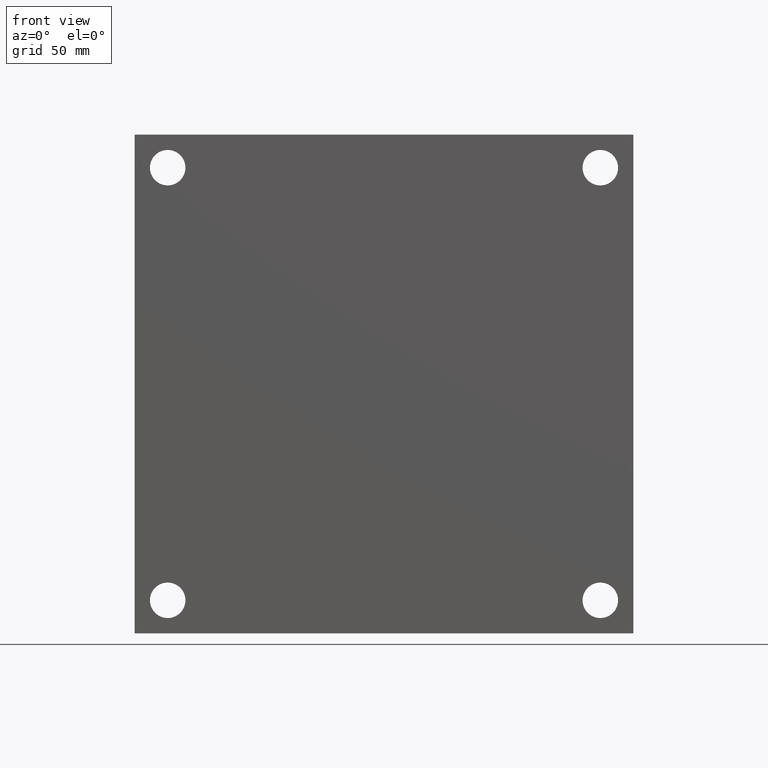
[diagram: clean part render]
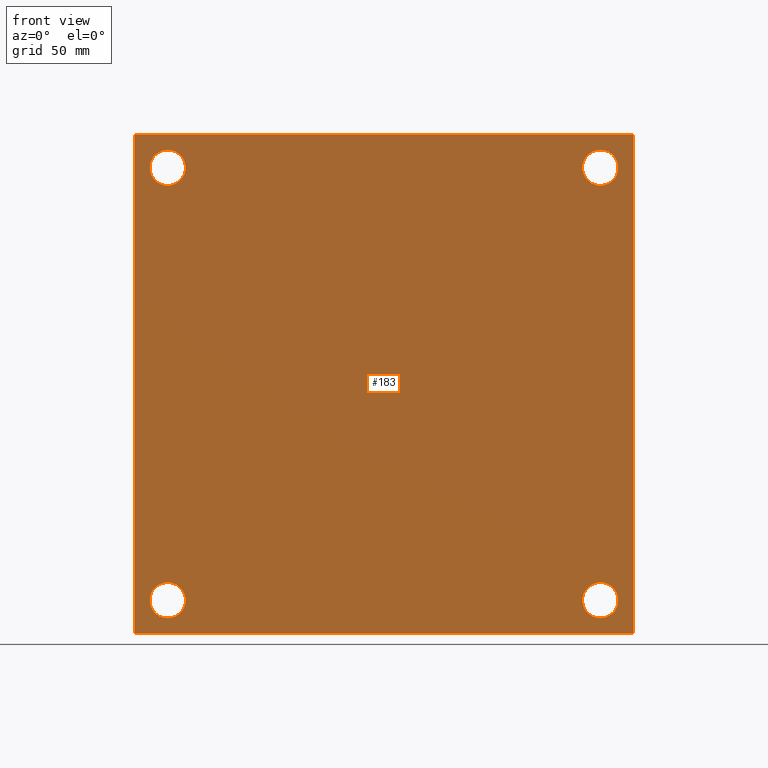
[diagram: same view with one face highlighted and labeled with its STEP entity id]
A machine part, front view. The second image highlights one B-rep face of the part: STEP entity #183.
In plain terms, the highlighted planar face has unit normal (0, 1, 0).
Its self-contained STEP definition (entity closure, byte-faithful):
#3 = EDGE_CURVE ( 'NONE', #1423, #295, #827, .T. ) ;
#25 = ORIENTED_EDGE ( 'NONE', *, *, #381, .F. ) ;
#42 = DIRECTION ( 'NONE',  ( 0.0000000000000000000, 1.000000000000000000, -0.0000000000000000000 ) ) ;
#47 = CARTESIAN_POINT ( 'NONE',  ( 5.312500000000000000, 0.0000000000000000000, 4.875000000000000900 ) ) ;
#50 = ORIENTED_EDGE ( 'NONE', *, *, #1134, .T. ) ;
#56 = DIRECTION ( 'NONE',  ( -1.000000000000000000, -0.0000000000000000000, -0.0000000000000000000 ) ) ;
#60 = LINE ( 'NONE', #564, #987 ) ;
#70 = DIRECTION ( 'NONE',  ( 0.0000000000000000000, 0.0000000000000000000, 1.000000000000000000 ) ) ;
#72 = EDGE_CURVE ( 'NONE', #1337, #509, #60, .T. ) ;
#75 = PLANE ( 'NONE',  #1527 ) ;
#76 = LINE ( 'NONE', #1015, #155 ) ;
#88 = DIRECTION ( 'NONE',  ( 0.0000000000000000000, 1.000000000000000000, -0.0000000000000000000 ) ) ;
#116 = EDGE_CURVE ( 'NONE', #420, #1254, #384, .T. ) ;
#144 = DIRECTION ( 'NONE',  ( 0.0000000000000000000, 1.000000000000000000, 0.0000000000000000000 ) ) ;
#145 = CIRCLE ( 'NONE', #574, 0.4374999999999998900 ) ;
#151 = EDGE_CURVE ( 'NONE', #1353, #1538, #1131, .T. ) ;
#155 = VECTOR ( 'NONE', #1146, 39.37007874015748100 ) ;
#175 = CARTESIAN_POINT ( 'NONE',  ( 6.125000000000000000, 0.0000000000000000000, -6.125000000000000000 ) ) ;
#183 = ADVANCED_FACE ( 'NONE', ( #302, #1550, #595, #1400, #453 ), #75, .F. ) ;
#192 = DIRECTION ( 'NONE',  ( 0.0000000000000000000, 1.000000000000000000, -0.0000000000000000000 ) ) ;
#205 = EDGE_LOOP ( 'NONE', ( #1393, #1133, #25, #218 ) ) ;
#208 = DIRECTION ( 'NONE',  ( 0.0000000000000000000, -0.0000000000000000000, 1.000000000000000000 ) ) ;
#218 = ORIENTED_EDGE ( 'NONE', *, *, #648, .F. ) ;
#230 = CARTESIAN_POINT ( 'NONE',  ( 5.312500000000000000, 0.0000000000000000000, -5.750000000000000900 ) ) ;
#239 = ORIENTED_EDGE ( 'NONE', *, *, #752, .T. ) ;
#264 = AXIS2_PLACEMENT_3D ( 'NONE', #455, #447, #1290 ) ;
#266 = CARTESIAN_POINT ( 'NONE',  ( -6.125000000000000000, 0.0000000000000000000, -6.125000000000000000 ) ) ;
#271 = VERTEX_POINT ( 'NONE', #230 ) ;
#280 = DIRECTION ( 'NONE',  ( 0.0000000000000000000, 1.000000000000000000, -0.0000000000000000000 ) ) ;
#295 = VERTEX_POINT ( 'NONE', #1465 ) ;
#302 = FACE_OUTER_BOUND ( 'NONE', #205, .T. ) ;
#331 = CARTESIAN_POINT ( 'NONE',  ( -5.312500000000000000, 0.0000000000000000000, -5.312500000000000900 ) ) ;
#371 = EDGE_CURVE ( 'NONE', #509, #1330, #541, .T. ) ;
#381 = EDGE_CURVE ( 'NONE', #658, #1337, #502, .T. ) ;
#384 = CIRCLE ( 'NONE', #1480, 0.4374999999999998900 ) ;
#420 = VERTEX_POINT ( 'NONE', #893 ) ;
#430 = CARTESIAN_POINT ( 'NONE',  ( -5.312500000000000000, 0.0000000000000000000, 5.312500000000000900 ) ) ;
#438 = CARTESIAN_POINT ( 'NONE',  ( -6.125000000000000000, 0.0000000000000000000, -6.125000000000000000 ) ) ;
#442 = DIRECTION ( 'NONE',  ( 0.0000000000000000000, 1.000000000000000000, 0.0000000000000000000 ) ) ;
#447 = DIRECTION ( 'NONE',  ( 0.0000000000000000000, 1.000000000000000000, 0.0000000000000000000 ) ) ;
#453 = FACE_BOUND ( 'NONE', #967, .T. ) ;
#455 = CARTESIAN_POINT ( 'NONE',  ( 5.312500000000000000, 0.0000000000000000000, 5.312500000000000900 ) ) ;
#466 = EDGE_LOOP ( 'NONE', ( #957, #1414 ) ) ;
#502 = LINE ( 'NONE', #816, #1026 ) ;
#507 = CARTESIAN_POINT ( 'NONE',  ( -5.312500000000000000, 0.0000000000000000000, -4.875000000000000900 ) ) ;
#509 = VERTEX_POINT ( 'NONE', #266 ) ;
#527 = ORIENTED_EDGE ( 'NONE', *, *, #3, .T. ) ;
#531 = DIRECTION ( 'NONE',  ( 0.0000000000000000000, 0.0000000000000000000, -1.000000000000000000 ) ) ;
#541 = LINE ( 'NONE', #438, #1361 ) ;
#564 = CARTESIAN_POINT ( 'NONE',  ( -6.125000000000000000, 0.0000000000000000000, -6.125000000000000000 ) ) ;
#566 = ORIENTED_EDGE ( 'NONE', *, *, #613, .T. ) ;
#573 = DIRECTION ( 'NONE',  ( 0.0000000000000000000, 0.0000000000000000000, 1.000000000000000000 ) ) ;
#574 = AXIS2_PLACEMENT_3D ( 'NONE', #986, #144, #622 ) ;
#595 = FACE_BOUND ( 'NONE', #1308, .T. ) ;
#613 = EDGE_CURVE ( 'NONE', #1057, #271, #1293, .T. ) ;
#622 = DIRECTION ( 'NONE',  ( 0.0000000000000000000, 0.0000000000000000000, 1.000000000000000000 ) ) ;
#648 = EDGE_CURVE ( 'NONE', #1330, #658, #76, .T. ) ;
#658 = VERTEX_POINT ( 'NONE', #666 ) ;
#666 = CARTESIAN_POINT ( 'NONE',  ( 6.125000000000000900, 0.0000000000000000000, 6.125000000000000000 ) ) ;
#669 = DIRECTION ( 'NONE',  ( 0.0000000000000000000, 0.0000000000000000000, -1.000000000000000000 ) ) ;
#706 = CARTESIAN_POINT ( 'NONE',  ( 5.312500000000000000, 0.0000000000000000000, 5.750000000000000900 ) ) ;
#752 = EDGE_CURVE ( 'NONE', #295, #1423, #1406, .T. ) ;
#791 = CARTESIAN_POINT ( 'NONE',  ( 5.312500000000000000, 0.0000000000000000000, -5.312500000000000900 ) ) ;
#793 = CIRCLE ( 'NONE', #1455, 0.4374999999999998900 ) ;
#816 = CARTESIAN_POINT ( 'NONE',  ( 6.125000000000000000, 0.0000000000000000000, -6.125000000000000000 ) ) ;
#827 = CIRCLE ( 'NONE', #1500, 0.4374999999999998900 ) ;
#832 = CARTESIAN_POINT ( 'NONE',  ( -6.125000000000000000, 0.0000000000000000000, 6.125000000000000000 ) ) ;
#850 = CIRCLE ( 'NONE', #1053, 0.4374999999999998900 ) ;
#893 = CARTESIAN_POINT ( 'NONE',  ( -5.312500000000000000, 0.0000000000000000000, -5.750000000000000900 ) ) ;
#923 = CARTESIAN_POINT ( 'NONE',  ( -6.125000000000000000, 0.0000000000000000000, 6.125000000000000000 ) ) ;
#957 = ORIENTED_EDGE ( 'NONE', *, *, #116, .T. ) ;
#967 = EDGE_LOOP ( 'NONE', ( #239, #527 ) ) ;
#986 = CARTESIAN_POINT ( 'NONE',  ( 5.312500000000000000, 0.0000000000000000000, 5.312500000000000900 ) ) ;
#987 = VECTOR ( 'NONE', #56, 39.37007874015748100 ) ;
#1006 = CARTESIAN_POINT ( 'NONE',  ( -5.312500000000000000, 0.0000000000000000000, 5.312500000000000900 ) ) ;
#1010 = EDGE_LOOP ( 'NONE', ( #1532, #50 ) ) ;
#1015 = CARTESIAN_POINT ( 'NONE',  ( -6.125000000000000000, 0.0000000000000000000, 6.125000000000000000 ) ) ;
#1024 = CARTESIAN_POINT ( 'NONE',  ( -5.312500000000000000, 0.0000000000000000000, 5.750000000000000900 ) ) ;
#1026 = VECTOR ( 'NONE', #1177, 39.37007874015748100 ) ;
#1053 = AXIS2_PLACEMENT_3D ( 'NONE', #1433, #88, #1352 ) ;
#1057 = VERTEX_POINT ( 'NONE', #1084 ) ;
#1060 = DIRECTION ( 'NONE',  ( 0.0000000000000000000, 0.0000000000000000000, 1.000000000000000000 ) ) ;
#1084 = CARTESIAN_POINT ( 'NONE',  ( 5.312500000000000000, 0.0000000000000000000, -4.875000000000000900 ) ) ;
#1117 = ORIENTED_EDGE ( 'NONE', *, *, #1547, .T. ) ;
#1131 = CIRCLE ( 'NONE', #264, 0.4374999999999998900 ) ;
#1133 = ORIENTED_EDGE ( 'NONE', *, *, #72, .F. ) ;
#1134 = EDGE_CURVE ( 'NONE', #1538, #1353, #145, .T. ) ;
#1135 = DIRECTION ( 'NONE',  ( 0.0000000000000000000, 0.0000000000000000000, -1.000000000000000000 ) ) ;
#1146 = DIRECTION ( 'NONE',  ( 1.000000000000000000, 0.0000000000000000000, 0.0000000000000000000 ) ) ;
#1177 = DIRECTION ( 'NONE',  ( -8.920319979311880200E-017, -0.0000000000000000000, -1.000000000000000000 ) ) ;
#1187 = CARTESIAN_POINT ( 'NONE',  ( -5.312500000000000000, 0.0000000000000000000, -5.312500000000000900 ) ) ;
#1254 = VERTEX_POINT ( 'NONE', #507 ) ;
#1290 = DIRECTION ( 'NONE',  ( 0.0000000000000000000, 0.0000000000000000000, 1.000000000000000000 ) ) ;
#1293 = CIRCLE ( 'NONE', #1452, 0.4374999999999998900 ) ;
#1295 = DIRECTION ( 'NONE',  ( 0.0000000000000000000, 1.000000000000000000, 0.0000000000000000000 ) ) ;
#1308 = EDGE_LOOP ( 'NONE', ( #1117, #566 ) ) ;
#1311 = AXIS2_PLACEMENT_3D ( 'NONE', #1006, #280, #1135 ) ;
#1330 = VERTEX_POINT ( 'NONE', #923 ) ;
#1337 = VERTEX_POINT ( 'NONE', #175 ) ;
#1352 = DIRECTION ( 'NONE',  ( 0.0000000000000000000, 0.0000000000000000000, -1.000000000000000000 ) ) ;
#1353 = VERTEX_POINT ( 'NONE', #47 ) ;
#1361 = VECTOR ( 'NONE', #70, 39.37007874015748100 ) ;
#1393 = ORIENTED_EDGE ( 'NONE', *, *, #371, .F. ) ;
#1400 = FACE_BOUND ( 'NONE', #1010, .T. ) ;
#1406 = CIRCLE ( 'NONE', #1311, 0.4374999999999998900 ) ;
#1414 = ORIENTED_EDGE ( 'NONE', *, *, #1464, .T. ) ;
#1423 = VERTEX_POINT ( 'NONE', #1024 ) ;
#1431 = DIRECTION ( 'NONE',  ( 0.0000000000000000000, 1.000000000000000000, 0.0000000000000000000 ) ) ;
#1433 = CARTESIAN_POINT ( 'NONE',  ( 5.312500000000000000, 0.0000000000000000000, -5.312500000000000900 ) ) ;
#1452 = AXIS2_PLACEMENT_3D ( 'NONE', #791, #42, #531 ) ;
#1455 = AXIS2_PLACEMENT_3D ( 'NONE', #331, #1295, #573 ) ;
#1464 = EDGE_CURVE ( 'NONE', #1254, #420, #793, .T. ) ;
#1465 = CARTESIAN_POINT ( 'NONE',  ( -5.312500000000000000, 0.0000000000000000000, 4.875000000000000900 ) ) ;
#1480 = AXIS2_PLACEMENT_3D ( 'NONE', #1187, #442, #1060 ) ;
#1500 = AXIS2_PLACEMENT_3D ( 'NONE', #430, #192, #669 ) ;
#1527 = AXIS2_PLACEMENT_3D ( 'NONE', #832, #1431, #208 ) ;
#1532 = ORIENTED_EDGE ( 'NONE', *, *, #151, .T. ) ;
#1538 = VERTEX_POINT ( 'NONE', #706 ) ;
#1547 = EDGE_CURVE ( 'NONE', #271, #1057, #850, .T. ) ;
#1550 = FACE_BOUND ( 'NONE', #466, .T. ) ;